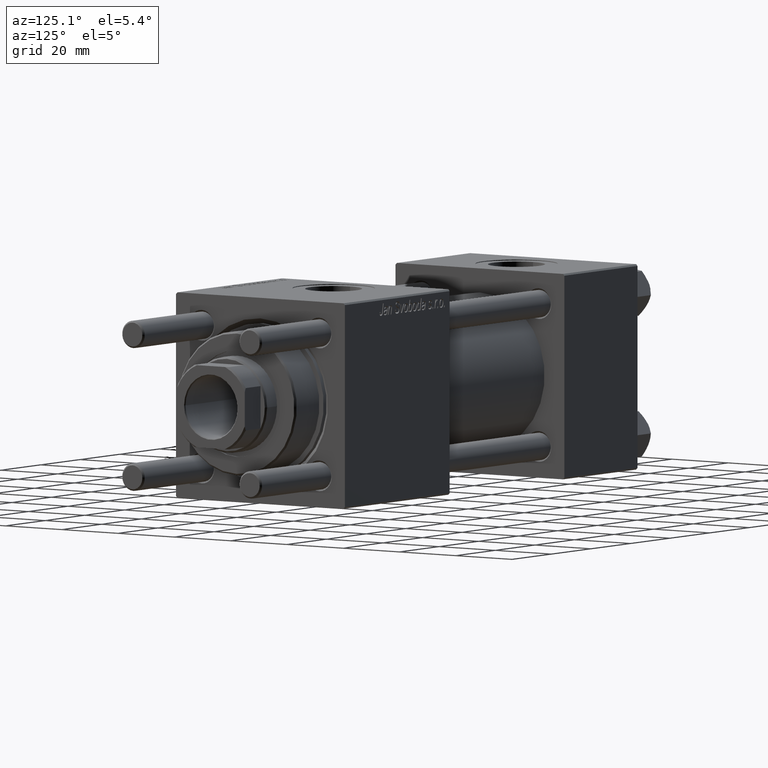
[diagram: clean part render]
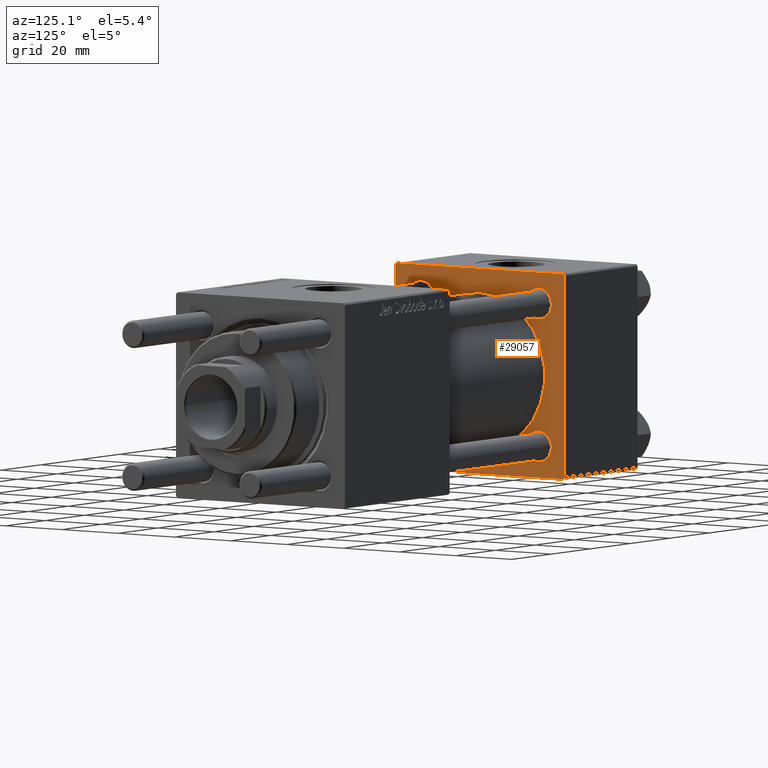
[diagram: same view with one face highlighted and labeled with its STEP entity id]
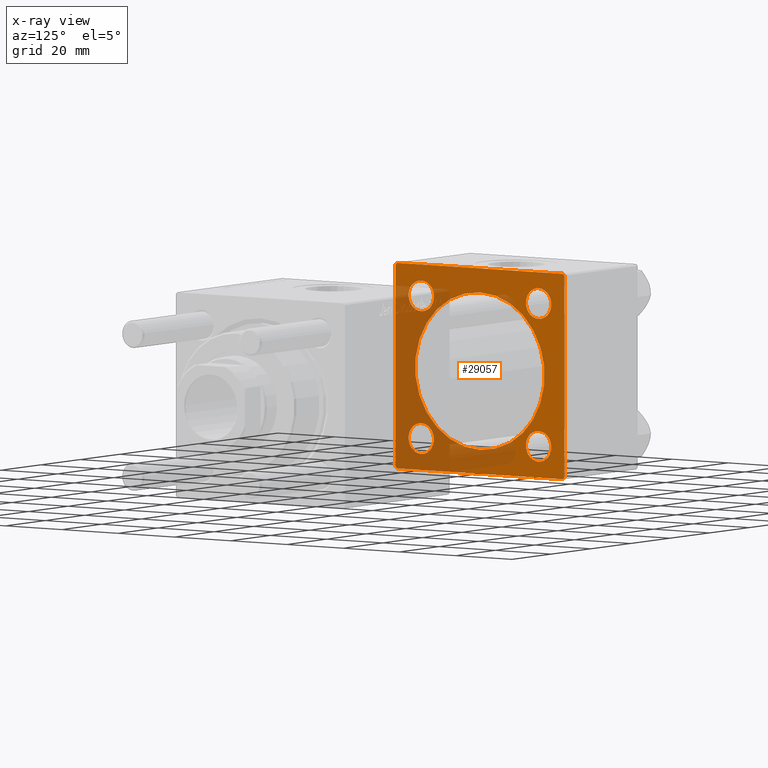
[diagram: x-ray of the same camera — body ghosted, the highlighted face saturated]
A machine part, auxiliary view. The second image highlights one B-rep face of the part: STEP entity #29057.
The next image is the same camera in x-ray: the body ghosted, the highlighted face saturated — about 42% of this face is hidden behind the body in this view.
In plain terms, the highlighted planar face has unit normal (-1, 0, 0).
Its self-contained STEP definition (entity closure, byte-faithful):
#459 = CARTESIAN_POINT ( 'NONE',  ( 37.00000000000000000, -29.49999999999998579, 29.99999999999999289 ) ) ;
#472 = FACE_OUTER_BOUND ( 'NONE', #41568, .T. ) ;
#753 = FACE_BOUND ( 'NONE', #14817, .T. ) ;
#909 = EDGE_LOOP ( 'NONE', ( #55368, #54073 ) ) ;
#1287 = EDGE_CURVE ( 'NONE', #31383, #28487, #17716, .T. ) ;
#1622 = CARTESIAN_POINT ( 'NONE',  ( 37.00000000000000000, -20.84999999999999076, 16.35000000000001208 ) ) ;
#1829 = VECTOR ( 'NONE', #20196, 1000.000000000000114 ) ;
#2222 = ORIENTED_EDGE ( 'NONE', *, *, #41131, .T. ) ;
#2575 = EDGE_LOOP ( 'NONE', ( #13432, #49974 ) ) ;
#2582 = DIRECTION ( 'NONE',  ( 0.000000000000000000, -1.000000000000000000, -1.156482317317871725E-16 ) ) ;
#2629 = EDGE_CURVE ( 'NONE', #30743, #32570, #3630, .T. ) ;
#3218 = CARTESIAN_POINT ( 'NONE',  ( 37.00000000000000000, -20.84999999999999076, -20.85000000000000497 ) ) ;
#3293 = VERTEX_POINT ( 'NONE', #459 ) ;
#3627 = ORIENTED_EDGE ( 'NONE', *, *, #1287, .T. ) ;
#3630 = CIRCLE ( 'NONE', #45833, 23.00000000000000000 ) ;
#3712 = EDGE_CURVE ( 'NONE', #26553, #8339, #6993, .T. ) ;
#3945 = CARTESIAN_POINT ( 'NONE',  ( 37.00000000000000000, -20.84999999999999076, -25.34999999999999432 ) ) ;
#3950 = CARTESIAN_POINT ( 'NONE',  ( 37.00000000000000000, 0.000000000000000000, 0.000000000000000000 ) ) ;
#4211 = CARTESIAN_POINT ( 'NONE',  ( 37.00000000000000000, -29.50000000000000000, -30.00000000000000711 ) ) ;
#4225 = LINE ( 'NONE', #25505, #5888 ) ;
#4503 = DIRECTION ( 'NONE',  ( -0.000000000000000000, 0.000000000000000000, 1.000000000000000000 ) ) ;
#5157 = CARTESIAN_POINT ( 'NONE',  ( 37.00000000000000000, 20.84999999999999787, -20.85000000000000142 ) ) ;
#5621 = DIRECTION ( 'NONE',  ( 1.000000000000000000, -0.000000000000000000, 0.000000000000000000 ) ) ;
#5888 = VECTOR ( 'NONE', #56528, 1000.000000000000000 ) ;
#5923 = AXIS2_PLACEMENT_3D ( 'NONE', #43909, #21518, #43633 ) ;
#6207 = CARTESIAN_POINT ( 'NONE',  ( 37.00000000000000000, -20.84999999999999076, 20.85000000000000497 ) ) ;
#6589 = CARTESIAN_POINT ( 'NONE',  ( 37.00000000000000000, 20.84999999999999787, 20.85000000000000142 ) ) ;
#6607 = LINE ( 'NONE', #46802, #45662 ) ;
#6633 = VECTOR ( 'NONE', #30656, 1000.000000000000114 ) ;
#6993 = LINE ( 'NONE', #19072, #1829 ) ;
#7319 = ORIENTED_EDGE ( 'NONE', *, *, #17171, .T. ) ;
#7715 = CARTESIAN_POINT ( 'NONE',  ( 37.00000000000000000, 29.49999999999999289, 30.00000000000000000 ) ) ;
#8200 = EDGE_CURVE ( 'NONE', #41592, #17337, #18481, .T. ) ;
#8339 = VERTEX_POINT ( 'NONE', #7715 ) ;
#8511 = CIRCLE ( 'NONE', #47015, 4.499999999999990230 ) ;
#8687 = LINE ( 'NONE', #49163, #28613 ) ;
#8738 = CARTESIAN_POINT ( 'NONE',  ( 37.00000000000000000, -20.84999999999999076, 20.85000000000000497 ) ) ;
#8825 = DIRECTION ( 'NONE',  ( -1.000000000000000000, 0.000000000000000000, -0.000000000000000000 ) ) ;
#8937 = CARTESIAN_POINT ( 'NONE',  ( 37.00000000000000000, -2.602085213965210642E-15, 0.000000000000000000 ) ) ;
#10368 = VECTOR ( 'NONE', #13838, 1000.000000000000114 ) ;
#11493 = ORIENTED_EDGE ( 'NONE', *, *, #34234, .T. ) ;
#12016 = VECTOR ( 'NONE', #45290, 1000.000000000000000 ) ;
#13417 = DIRECTION ( 'NONE',  ( -0.000000000000000000, 0.7071067811865574537, 0.7071067811865376918 ) ) ;
#13432 = ORIENTED_EDGE ( 'NONE', *, *, #39860, .T. ) ;
#13838 = DIRECTION ( 'NONE',  ( 0.000000000000000000, 0.7071067811865474617, -0.7071067811865474617 ) ) ;
#13997 = LINE ( 'NONE', #31501, #12016 ) ;
#14234 = CIRCLE ( 'NONE', #35332, 4.499999999999990230 ) ;
#14528 = EDGE_CURVE ( 'NONE', #19927, #52022, #8687, .T. ) ;
#14811 = VERTEX_POINT ( 'NONE', #14862 ) ;
#14817 = EDGE_LOOP ( 'NONE', ( #19383, #50605 ) ) ;
#14832 = CARTESIAN_POINT ( 'NONE',  ( 37.00000000000000000, 29.99999999999999289, 29.50000000000000000 ) ) ;
#14854 = AXIS2_PLACEMENT_3D ( 'NONE', #5157, #31875, #32724 ) ;
#14862 = CARTESIAN_POINT ( 'NONE',  ( 37.00000000000000000, -20.84999999999999076, -16.35000000000001208 ) ) ;
#15102 = CIRCLE ( 'NONE', #22411, 4.499999999999990230 ) ;
#15389 = DIRECTION ( 'NONE',  ( 0.000000000000000000, 0.000000000000000000, 1.000000000000000000 ) ) ;
#15702 = DIRECTION ( 'NONE',  ( -1.000000000000000000, 0.000000000000000000, -0.000000000000000000 ) ) ;
#16199 = EDGE_CURVE ( 'NONE', #3293, #19927, #56544, .T. ) ;
#16332 = CARTESIAN_POINT ( 'NONE',  ( 37.00000000000000000, -30.00000000000000000, -29.50000000000001776 ) ) ;
#17171 = EDGE_CURVE ( 'NONE', #52022, #38813, #31059, .T. ) ;
#17337 = VERTEX_POINT ( 'NONE', #19892 ) ;
#17510 = AXIS2_PLACEMENT_3D ( 'NONE', #3950, #8825, #4503 ) ;
#17716 = LINE ( 'NONE', #52756, #52228 ) ;
#18481 = CIRCLE ( 'NONE', #14854, 4.499999999999990230 ) ;
#19072 = CARTESIAN_POINT ( 'NONE',  ( 37.00000000000000000, 29.49999999999999289, 30.00000000000000000 ) ) ;
#19383 = ORIENTED_EDGE ( 'NONE', *, *, #22712, .T. ) ;
#19685 = CARTESIAN_POINT ( 'NONE',  ( 37.00000000000000000, 2.146024240737012665E-16, -23.00000000000000000 ) ) ;
#19892 = CARTESIAN_POINT ( 'NONE',  ( 37.00000000000000000, 20.84999999999999787, -25.34999999999999076 ) ) ;
#19927 = VERTEX_POINT ( 'NONE', #26525 ) ;
#20196 = DIRECTION ( 'NONE',  ( 0.000000000000000000, -0.7071067811865474617, 0.7071067811865474617 ) ) ;
#20225 = EDGE_CURVE ( 'NONE', #14811, #52027, #53523, .T. ) ;
#20699 = AXIS2_PLACEMENT_3D ( 'NONE', #8937, #48842, #26455 ) ;
#21020 = CARTESIAN_POINT ( 'NONE',  ( 37.00000000000000000, 20.84999999999999787, 16.35000000000001208 ) ) ;
#21518 = DIRECTION ( 'NONE',  ( -1.000000000000000000, 0.000000000000000000, -0.000000000000000000 ) ) ;
#21754 = FACE_BOUND ( 'NONE', #909, .T. ) ;
#21925 = EDGE_CURVE ( 'NONE', #26553, #28487, #4225, .T. ) ;
#22411 = AXIS2_PLACEMENT_3D ( 'NONE', #6207, #15702, #27471 ) ;
#22712 = EDGE_CURVE ( 'NONE', #17337, #41592, #38936, .T. ) ;
#23072 = ORIENTED_EDGE ( 'NONE', *, *, #16199, .T. ) ;
#25295 = CARTESIAN_POINT ( 'NONE',  ( 37.00000000000000000, 29.49999999999997868, -30.00000000000000000 ) ) ;
#25505 = CARTESIAN_POINT ( 'NONE',  ( 37.00000000000000000, 29.99999999999999289, 30.00000000000000000 ) ) ;
#25508 = CARTESIAN_POINT ( 'NONE',  ( 37.00000000000000000, -2.602085213965210642E-15, 23.00000000000000000 ) ) ;
#25638 = CARTESIAN_POINT ( 'NONE',  ( 37.00000000000000000, 29.99999999999999289, -29.50000000000000000 ) ) ;
#25726 = EDGE_LOOP ( 'NONE', ( #44453, #2222 ) ) ;
#25937 = EDGE_CURVE ( 'NONE', #32570, #30743, #46404, .T. ) ;
#26211 = DIRECTION ( 'NONE',  ( 0.000000000000000000, 0.000000000000000000, -1.000000000000000000 ) ) ;
#26455 = DIRECTION ( 'NONE',  ( 0.000000000000000000, 0.000000000000000000, 1.000000000000000000 ) ) ;
#26525 = CARTESIAN_POINT ( 'NONE',  ( 37.00000000000000000, -30.00000000000000000, 29.49999999999999289 ) ) ;
#26553 = VERTEX_POINT ( 'NONE', #14832 ) ;
#26624 = FACE_BOUND ( 'NONE', #25726, .T. ) ;
#26910 = PLANE ( 'NONE',  #17510 ) ;
#27339 = AXIS2_PLACEMENT_3D ( 'NONE', #8738, #51545, #42942 ) ;
#27471 = DIRECTION ( 'NONE',  ( 0.000000000000000000, 0.000000000000000000, 1.000000000000000000 ) ) ;
#28034 = DIRECTION ( 'NONE',  ( 0.000000000000000000, 0.000000000000000000, 1.000000000000000000 ) ) ;
#28487 = VERTEX_POINT ( 'NONE', #25638 ) ;
#28613 = VECTOR ( 'NONE', #26211, 1000.000000000000000 ) ;
#28713 = DIRECTION ( 'NONE',  ( -1.000000000000000000, 0.000000000000000000, -0.000000000000000000 ) ) ;
#28773 = AXIS2_PLACEMENT_3D ( 'NONE', #3218, #29646, #54947 ) ;
#29057 = ADVANCED_FACE ( 'NONE', ( #30646, #753, #48163, #26624, #21754, #472 ), #26910, .F. ) ;
#29159 = EDGE_CURVE ( 'NONE', #8339, #3293, #13997, .T. ) ;
#29178 = ORIENTED_EDGE ( 'NONE', *, *, #14528, .T. ) ;
#29646 = DIRECTION ( 'NONE',  ( -1.000000000000000000, 0.000000000000000000, -0.000000000000000000 ) ) ;
#30256 = DIRECTION ( 'NONE',  ( 0.000000000000000000, 0.000000000000000000, 1.000000000000000000 ) ) ;
#30646 = FACE_BOUND ( 'NONE', #49597, .T. ) ;
#30656 = DIRECTION ( 'NONE',  ( -0.000000000000000000, -0.7071067811865474617, -0.7071067811865474617 ) ) ;
#30743 = VERTEX_POINT ( 'NONE', #19685 ) ;
#31059 = LINE ( 'NONE', #31347, #10368 ) ;
#31095 = CARTESIAN_POINT ( 'NONE',  ( 37.00000000000000000, -20.84999999999999076, -20.85000000000000497 ) ) ;
#31347 = CARTESIAN_POINT ( 'NONE',  ( 37.00000000000000000, -29.50000000000001066, -30.00000000000000711 ) ) ;
#31383 = VERTEX_POINT ( 'NONE', #25295 ) ;
#31501 = CARTESIAN_POINT ( 'NONE',  ( 37.00000000000000000, 29.99999999999999289, 30.00000000000000000 ) ) ;
#31875 = DIRECTION ( 'NONE',  ( -1.000000000000000000, 0.000000000000000000, -0.000000000000000000 ) ) ;
#32570 = VERTEX_POINT ( 'NONE', #25508 ) ;
#32724 = DIRECTION ( 'NONE',  ( 0.000000000000000000, 0.000000000000000000, 1.000000000000000000 ) ) ;
#33457 = CARTESIAN_POINT ( 'NONE',  ( 37.00000000000000000, 20.84999999999999787, 20.85000000000000142 ) ) ;
#33490 = VERTEX_POINT ( 'NONE', #53496 ) ;
#34234 = EDGE_CURVE ( 'NONE', #52027, #14811, #8511, .T. ) ;
#35332 = AXIS2_PLACEMENT_3D ( 'NONE', #6589, #28713, #37328 ) ;
#35425 = ORIENTED_EDGE ( 'NONE', *, *, #29159, .T. ) ;
#36243 = CIRCLE ( 'NONE', #37268, 4.499999999999990230 ) ;
#36629 = CARTESIAN_POINT ( 'NONE',  ( 37.00000000000000000, 20.84999999999999787, -16.35000000000001208 ) ) ;
#37268 = AXIS2_PLACEMENT_3D ( 'NONE', #33457, #37480, #15389 ) ;
#37328 = DIRECTION ( 'NONE',  ( 0.000000000000000000, 0.000000000000000000, 1.000000000000000000 ) ) ;
#37467 = ORIENTED_EDGE ( 'NONE', *, *, #3712, .T. ) ;
#37480 = DIRECTION ( 'NONE',  ( -1.000000000000000000, 0.000000000000000000, -0.000000000000000000 ) ) ;
#38443 = CARTESIAN_POINT ( 'NONE',  ( 37.00000000000000000, -30.00000000000000000, 29.49999999999999289 ) ) ;
#38813 = VERTEX_POINT ( 'NONE', #4211 ) ;
#38936 = CIRCLE ( 'NONE', #5923, 4.499999999999990230 ) ;
#39263 = CIRCLE ( 'NONE', #27339, 4.499999999999990230 ) ;
#39860 = EDGE_CURVE ( 'NONE', #53055, #52930, #15102, .T. ) ;
#41131 = EDGE_CURVE ( 'NONE', #33490, #43276, #14234, .T. ) ;
#41287 = ORIENTED_EDGE ( 'NONE', *, *, #54710, .F. ) ;
#41568 = EDGE_LOOP ( 'NONE', ( #41287, #3627, #48113, #37467, #35425, #23072, #29178, #7319 ) ) ;
#41592 = VERTEX_POINT ( 'NONE', #36629 ) ;
#42942 = DIRECTION ( 'NONE',  ( 0.000000000000000000, 0.000000000000000000, 1.000000000000000000 ) ) ;
#43276 = VERTEX_POINT ( 'NONE', #21020 ) ;
#43478 = DIRECTION ( 'NONE',  ( -1.000000000000000000, 0.000000000000000000, -0.000000000000000000 ) ) ;
#43633 = DIRECTION ( 'NONE',  ( 0.000000000000000000, 0.000000000000000000, 1.000000000000000000 ) ) ;
#43909 = CARTESIAN_POINT ( 'NONE',  ( 37.00000000000000000, 20.84999999999999787, -20.85000000000000142 ) ) ;
#44453 = ORIENTED_EDGE ( 'NONE', *, *, #46234, .T. ) ;
#44520 = ORIENTED_EDGE ( 'NONE', *, *, #20225, .T. ) ;
#45290 = DIRECTION ( 'NONE',  ( 0.000000000000000000, -1.000000000000000000, -1.156482317317871725E-16 ) ) ;
#45662 = VECTOR ( 'NONE', #2582, 1000.000000000000000 ) ;
#45833 = AXIS2_PLACEMENT_3D ( 'NONE', #49558, #5621, #28034 ) ;
#46234 = EDGE_CURVE ( 'NONE', #43276, #33490, #36243, .T. ) ;
#46404 = CIRCLE ( 'NONE', #20699, 23.00000000000000000 ) ;
#46802 = CARTESIAN_POINT ( 'NONE',  ( 37.00000000000000000, 29.99999999999999289, -30.00000000000000000 ) ) ;
#47015 = AXIS2_PLACEMENT_3D ( 'NONE', #31095, #43478, #30256 ) ;
#48113 = ORIENTED_EDGE ( 'NONE', *, *, #21925, .F. ) ;
#48163 = FACE_BOUND ( 'NONE', #2575, .T. ) ;
#48842 = DIRECTION ( 'NONE',  ( 1.000000000000000000, -0.000000000000000000, 0.000000000000000000 ) ) ;
#49017 = CARTESIAN_POINT ( 'NONE',  ( 37.00000000000000000, -20.84999999999999076, 25.34999999999999432 ) ) ;
#49163 = CARTESIAN_POINT ( 'NONE',  ( 37.00000000000000000, -30.00000000000000000, 29.99999999999999289 ) ) ;
#49558 = CARTESIAN_POINT ( 'NONE',  ( 37.00000000000000000, -2.602085213965210642E-15, 0.000000000000000000 ) ) ;
#49597 = EDGE_LOOP ( 'NONE', ( #11493, #44520 ) ) ;
#49974 = ORIENTED_EDGE ( 'NONE', *, *, #56332, .T. ) ;
#50605 = ORIENTED_EDGE ( 'NONE', *, *, #8200, .T. ) ;
#51545 = DIRECTION ( 'NONE',  ( -1.000000000000000000, 0.000000000000000000, -0.000000000000000000 ) ) ;
#52022 = VERTEX_POINT ( 'NONE', #16332 ) ;
#52027 = VERTEX_POINT ( 'NONE', #3945 ) ;
#52228 = VECTOR ( 'NONE', #13417, 999.9999999999998863 ) ;
#52756 = CARTESIAN_POINT ( 'NONE',  ( 37.00000000000000000, 29.99999999999999289, -29.50000000000000000 ) ) ;
#52930 = VERTEX_POINT ( 'NONE', #49017 ) ;
#53055 = VERTEX_POINT ( 'NONE', #1622 ) ;
#53496 = CARTESIAN_POINT ( 'NONE',  ( 37.00000000000000000, 20.84999999999999787, 25.34999999999999076 ) ) ;
#53523 = CIRCLE ( 'NONE', #28773, 4.499999999999990230 ) ;
#54073 = ORIENTED_EDGE ( 'NONE', *, *, #2629, .F. ) ;
#54710 = EDGE_CURVE ( 'NONE', #31383, #38813, #6607, .T. ) ;
#54947 = DIRECTION ( 'NONE',  ( 0.000000000000000000, 0.000000000000000000, 1.000000000000000000 ) ) ;
#55368 = ORIENTED_EDGE ( 'NONE', *, *, #25937, .F. ) ;
#56332 = EDGE_CURVE ( 'NONE', #52930, #53055, #39263, .T. ) ;
#56528 = DIRECTION ( 'NONE',  ( 0.000000000000000000, 0.000000000000000000, -1.000000000000000000 ) ) ;
#56544 = LINE ( 'NONE', #38443, #6633 ) ;